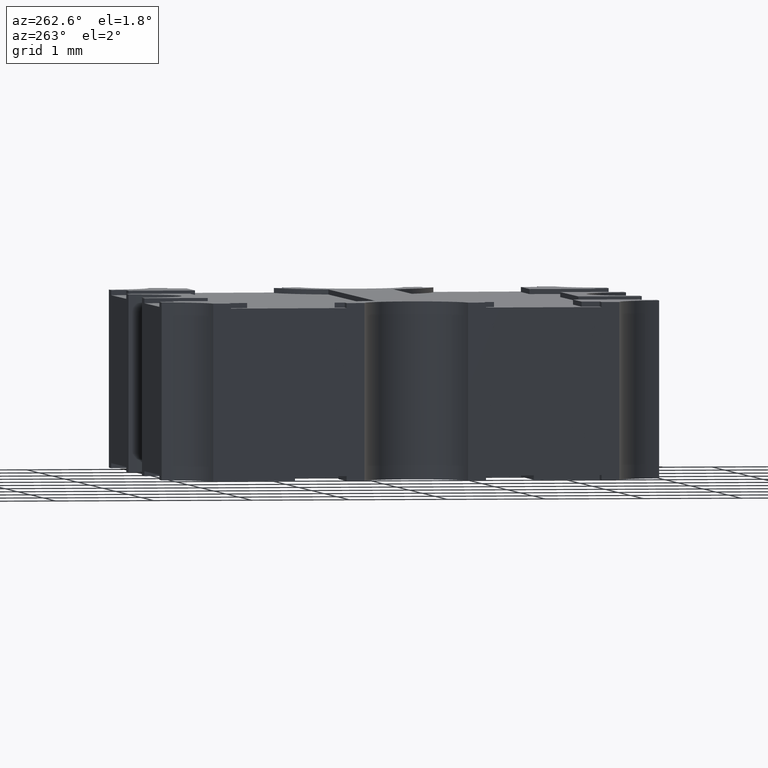
[diagram: clean part render]
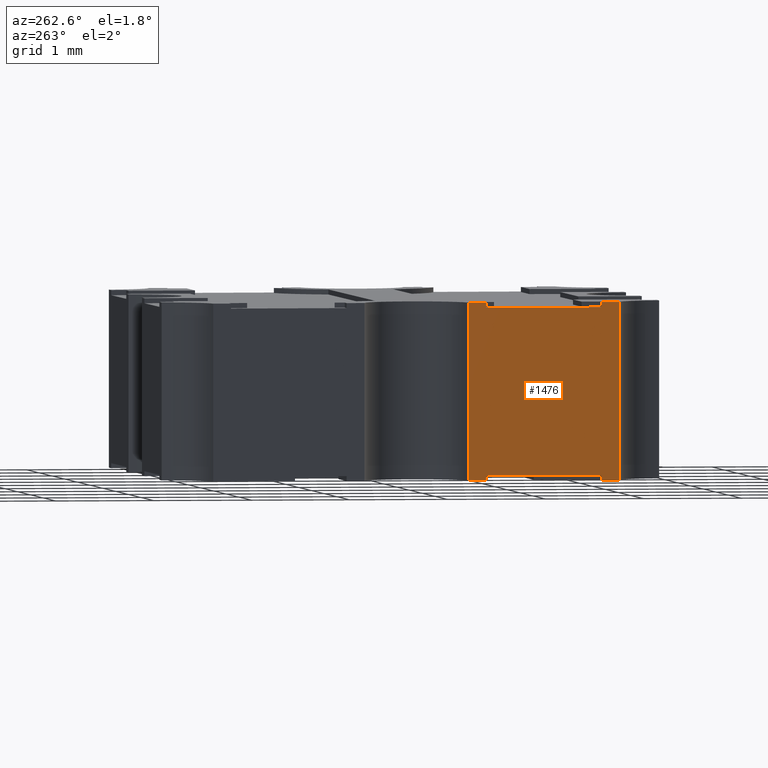
[diagram: same view with one face highlighted and labeled with its STEP entity id]
A machine part, auxiliary view. The second image highlights one B-rep face of the part: STEP entity #1476.
In plain terms, the highlighted planar face has unit normal (1, 0, 0).
Its self-contained STEP definition (entity closure, byte-faithful):
#3 = DIRECTION ( 'NONE',  ( -0.000000000000000000, -1.000000000000000000, -0.000000000000000000 ) ) ;
#109 = AXIS2_PLACEMENT_3D ( 'NONE', #685, #2857, #1868 ) ;
#154 = ORIENTED_EDGE ( 'NONE', *, *, #1939, .T. ) ;
#165 = CARTESIAN_POINT ( 'NONE',  ( -0.1000000000000005884, -0.02800000000032898395, 0.002000000000000000042 ) ) ;
#201 = LINE ( 'NONE', #3916, #356 ) ;
#208 = EDGE_CURVE ( 'NONE', #1916, #2156, #550, .T. ) ;
#228 = VERTEX_POINT ( 'NONE', #1116 ) ;
#281 = CARTESIAN_POINT ( 'NONE',  ( -0.1000000000000006023, -0.02800000000007848641, 0.06899999999999997802 ) ) ;
#310 = CARTESIAN_POINT ( 'NONE',  ( -0.1000000000000005884, -0.08164934053800838865, 0.000000000000000000 ) ) ;
#356 = VECTOR ( 'NONE', #1396, 39.37007874015748143 ) ;
#417 = VECTOR ( 'NONE', #3, 39.37007874015748143 ) ;
#478 = VECTOR ( 'NONE', #3738, 39.37007874015748143 ) ;
#503 = VERTEX_POINT ( 'NONE', #2168 ) ;
#514 = CARTESIAN_POINT ( 'NONE',  ( -0.1000000000000006023, -0.07450000000000210620, 0.06899999999999997802 ) ) ;
#550 = LINE ( 'NONE', #3882, #2352 ) ;
#588 = CARTESIAN_POINT ( 'NONE',  ( -0.1000000000000005884, -0.02085065946207373400, 0.002000000000000000042 ) ) ;
#604 = VECTOR ( 'NONE', #1729, 39.37007874015748143 ) ;
#676 = ORIENTED_EDGE ( 'NONE', *, *, #2526, .T. ) ;
#680 = CARTESIAN_POINT ( 'NONE',  ( -0.1000000000000006023, -0.08164934053800838865, 0.07099999999999997979 ) ) ;
#685 = CARTESIAN_POINT ( 'NONE',  ( -0.1000000000000005884, -0.08164934053800838865, 0.002000000000000000042 ) ) ;
#711 = ORIENTED_EDGE ( 'NONE', *, *, #2888, .F. ) ;
#724 = CARTESIAN_POINT ( 'NONE',  ( -0.1000000000000006023, -8.057244176313536856E-14, 0.07099999999999997979 ) ) ;
#733 = CARTESIAN_POINT ( 'NONE',  ( -0.1000000000000005884, -0.07450000000015941093, 0.002000000000000000042 ) ) ;
#751 = LINE ( 'NONE', #733, #3756 ) ;
#910 = CARTESIAN_POINT ( 'NONE',  ( -0.1000000000000006023, -0.02085065946207373747, 0.07099999999999997979 ) ) ;
#1016 = DIRECTION ( 'NONE',  ( 0.000000000000000000, 0.000000000000000000, -1.000000000000000000 ) ) ;
#1024 = LINE ( 'NONE', #724, #478 ) ;
#1116 = CARTESIAN_POINT ( 'NONE',  ( -0.1000000000000005884, -0.02085065946207373400, 0.000000000000000000 ) ) ;
#1279 = ORIENTED_EDGE ( 'NONE', *, *, #3250, .T. ) ;
#1288 = CARTESIAN_POINT ( 'NONE',  ( -0.1000000000000006023, -0.02800000000007848641, 0.07099999999999997979 ) ) ;
#1396 = DIRECTION ( 'NONE',  ( -0.000000000000000000, -1.000000000000000000, -0.000000000000000000 ) ) ;
#1476 = ADVANCED_FACE ( 'NONE', ( #3807 ), #1660, .F. ) ;
#1578 = VECTOR ( 'NONE', #1942, 39.37007874015748143 ) ;
#1589 = ORIENTED_EDGE ( 'NONE', *, *, #3023, .T. ) ;
#1660 = PLANE ( 'NONE',  #109 ) ;
#1729 = DIRECTION ( 'NONE',  ( -0.000000000000000000, -1.000000000000000000, -0.000000000000000000 ) ) ;
#1734 = ORIENTED_EDGE ( 'NONE', *, *, #208, .F. ) ;
#1868 = DIRECTION ( 'NONE',  ( 0.000000000000000000, 0.000000000000000000, -1.000000000000000000 ) ) ;
#1916 = VERTEX_POINT ( 'NONE', #680 ) ;
#1939 = EDGE_CURVE ( 'NONE', #3923, #2592, #1024, .T. ) ;
#1942 = DIRECTION ( 'NONE',  ( 0.000000000000000000, 1.000000000000000000, 0.000000000000000000 ) ) ;
#1994 = CARTESIAN_POINT ( 'NONE',  ( -0.1000000000000005884, -0.07450000000015941093, 0.002000000000000000042 ) ) ;
#2012 = VERTEX_POINT ( 'NONE', #3155 ) ;
#2040 = LINE ( 'NONE', #2324, #604 ) ;
#2124 = EDGE_CURVE ( 'NONE', #3713, #2460, #2040, .T. ) ;
#2153 = CARTESIAN_POINT ( 'NONE',  ( -0.1000000000000006023, -0.07450000000000210620, 0.06899999999999997802 ) ) ;
#2156 = VERTEX_POINT ( 'NONE', #3575 ) ;
#2168 = CARTESIAN_POINT ( 'NONE',  ( -0.1000000000000006023, -0.07450000000000210620, 0.07099999999999997979 ) ) ;
#2175 = EDGE_CURVE ( 'NONE', #2991, #2012, #3839, .T. ) ;
#2180 = ORIENTED_EDGE ( 'NONE', *, *, #2124, .T. ) ;
#2303 = CARTESIAN_POINT ( 'NONE',  ( -0.1000000000000006023, -8.057244176313536856E-14, 0.06899999999999997802 ) ) ;
#2308 = ORIENTED_EDGE ( 'NONE', *, *, #2963, .T. ) ;
#2312 = EDGE_CURVE ( 'NONE', #2460, #3611, #751, .T. ) ;
#2324 = CARTESIAN_POINT ( 'NONE',  ( -0.1000000000000005884, -0.07450000000015941093, 0.002000000000000000042 ) ) ;
#2352 = VECTOR ( 'NONE', #2667, 39.37007874015748143 ) ;
#2460 = VERTEX_POINT ( 'NONE', #1994 ) ;
#2473 = ORIENTED_EDGE ( 'NONE', *, *, #2312, .T. ) ;
#2526 = EDGE_CURVE ( 'NONE', #228, #3203, #2726, .T. ) ;
#2546 = LINE ( 'NONE', #2802, #1578 ) ;
#2592 = VERTEX_POINT ( 'NONE', #910 ) ;
#2607 = VECTOR ( 'NONE', #2825, 39.37007874015748143 ) ;
#2643 = LINE ( 'NONE', #165, #3694 ) ;
#2667 = DIRECTION ( 'NONE',  ( -0.000000000000000000, -0.000000000000000000, -1.000000000000000000 ) ) ;
#2726 = LINE ( 'NONE', #310, #417 ) ;
#2733 = EDGE_LOOP ( 'NONE', ( #3102, #2849, #2308, #154, #1589, #676, #711, #2180, #2473, #1279, #1734, #3922 ) ) ;
#2750 = CARTESIAN_POINT ( 'NONE',  ( -0.1000000000000005884, -0.02800000000032898395, 0.002000000000000000042 ) ) ;
#2802 = CARTESIAN_POINT ( 'NONE',  ( -0.1000000000000006023, -8.057244176313536856E-14, 0.07099999999999997979 ) ) ;
#2821 = EDGE_CURVE ( 'NONE', #2991, #503, #3303, .T. ) ;
#2825 = DIRECTION ( 'NONE',  ( -0.000000000000000000, -0.000000000000000000, -1.000000000000000000 ) ) ;
#2849 = ORIENTED_EDGE ( 'NONE', *, *, #2175, .T. ) ;
#2857 = DIRECTION ( 'NONE',  ( 1.000000000000000000, 0.000000000000000000, 0.000000000000000000 ) ) ;
#2888 = EDGE_CURVE ( 'NONE', #3713, #3203, #2643, .T. ) ;
#2892 = DIRECTION ( 'NONE',  ( 0.000000000000000000, 1.000000000000000000, 0.000000000000000000 ) ) ;
#2922 = CARTESIAN_POINT ( 'NONE',  ( -0.1000000000000005884, -0.02800000000032898395, 0.000000000000000000 ) ) ;
#2923 = VECTOR ( 'NONE', #3918, 39.37007874015748143 ) ;
#2937 = CARTESIAN_POINT ( 'NONE',  ( -0.1000000000000005884, -0.07450000000015941093, 0.000000000000000000 ) ) ;
#2963 = EDGE_CURVE ( 'NONE', #2012, #3923, #3710, .T. ) ;
#2991 = VERTEX_POINT ( 'NONE', #2153 ) ;
#3023 = EDGE_CURVE ( 'NONE', #2592, #228, #3341, .T. ) ;
#3060 = EDGE_CURVE ( 'NONE', #1916, #503, #2546, .T. ) ;
#3102 = ORIENTED_EDGE ( 'NONE', *, *, #2821, .F. ) ;
#3155 = CARTESIAN_POINT ( 'NONE',  ( -0.1000000000000006023, -0.02800000000007848641, 0.06899999999999997802 ) ) ;
#3203 = VERTEX_POINT ( 'NONE', #2922 ) ;
#3250 = EDGE_CURVE ( 'NONE', #3611, #2156, #201, .T. ) ;
#3303 = LINE ( 'NONE', #514, #2923 ) ;
#3341 = LINE ( 'NONE', #588, #2607 ) ;
#3368 = VECTOR ( 'NONE', #3624, 39.37007874015748143 ) ;
#3500 = VECTOR ( 'NONE', #2892, 39.37007874015748143 ) ;
#3548 = DIRECTION ( 'NONE',  ( 0.000000000000000000, 0.000000000000000000, -1.000000000000000000 ) ) ;
#3575 = CARTESIAN_POINT ( 'NONE',  ( -0.1000000000000005884, -0.08164934053800838865, 0.000000000000000000 ) ) ;
#3611 = VERTEX_POINT ( 'NONE', #2937 ) ;
#3624 = DIRECTION ( 'NONE',  ( -0.000000000000000000, -0.000000000000000000, 1.000000000000000000 ) ) ;
#3694 = VECTOR ( 'NONE', #3548, 39.37007874015748143 ) ;
#3710 = LINE ( 'NONE', #281, #3368 ) ;
#3713 = VERTEX_POINT ( 'NONE', #2750 ) ;
#3738 = DIRECTION ( 'NONE',  ( 0.000000000000000000, 1.000000000000000000, 0.000000000000000000 ) ) ;
#3756 = VECTOR ( 'NONE', #1016, 39.37007874015748143 ) ;
#3807 = FACE_OUTER_BOUND ( 'NONE', #2733, .T. ) ;
#3839 = LINE ( 'NONE', #2303, #3500 ) ;
#3882 = CARTESIAN_POINT ( 'NONE',  ( -0.1000000000000005884, -0.08164934053800838865, 0.002000000000000000042 ) ) ;
#3916 = CARTESIAN_POINT ( 'NONE',  ( -0.1000000000000005884, -0.08164934053800838865, 0.000000000000000000 ) ) ;
#3918 = DIRECTION ( 'NONE',  ( -0.000000000000000000, -0.000000000000000000, 1.000000000000000000 ) ) ;
#3922 = ORIENTED_EDGE ( 'NONE', *, *, #3060, .T. ) ;
#3923 = VERTEX_POINT ( 'NONE', #1288 ) ;